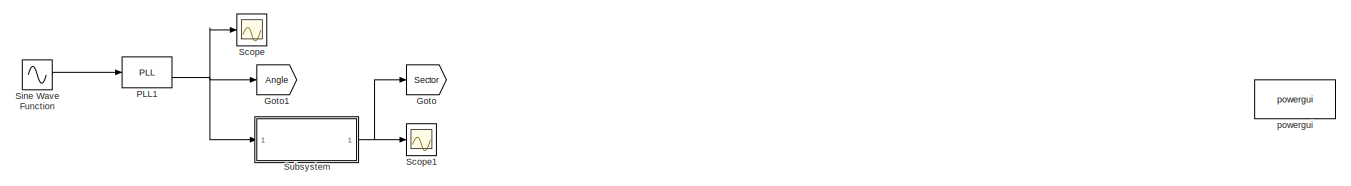
[diagram: root canvas - part 1/4, top center region]
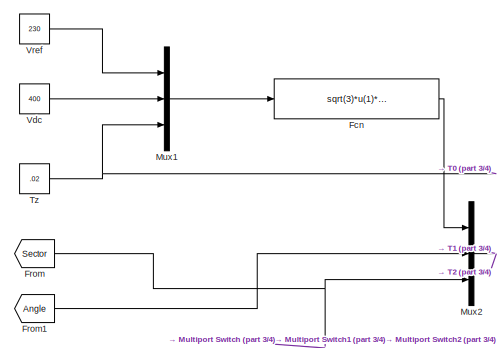
[diagram: root canvas - part 2/4, middle left region]
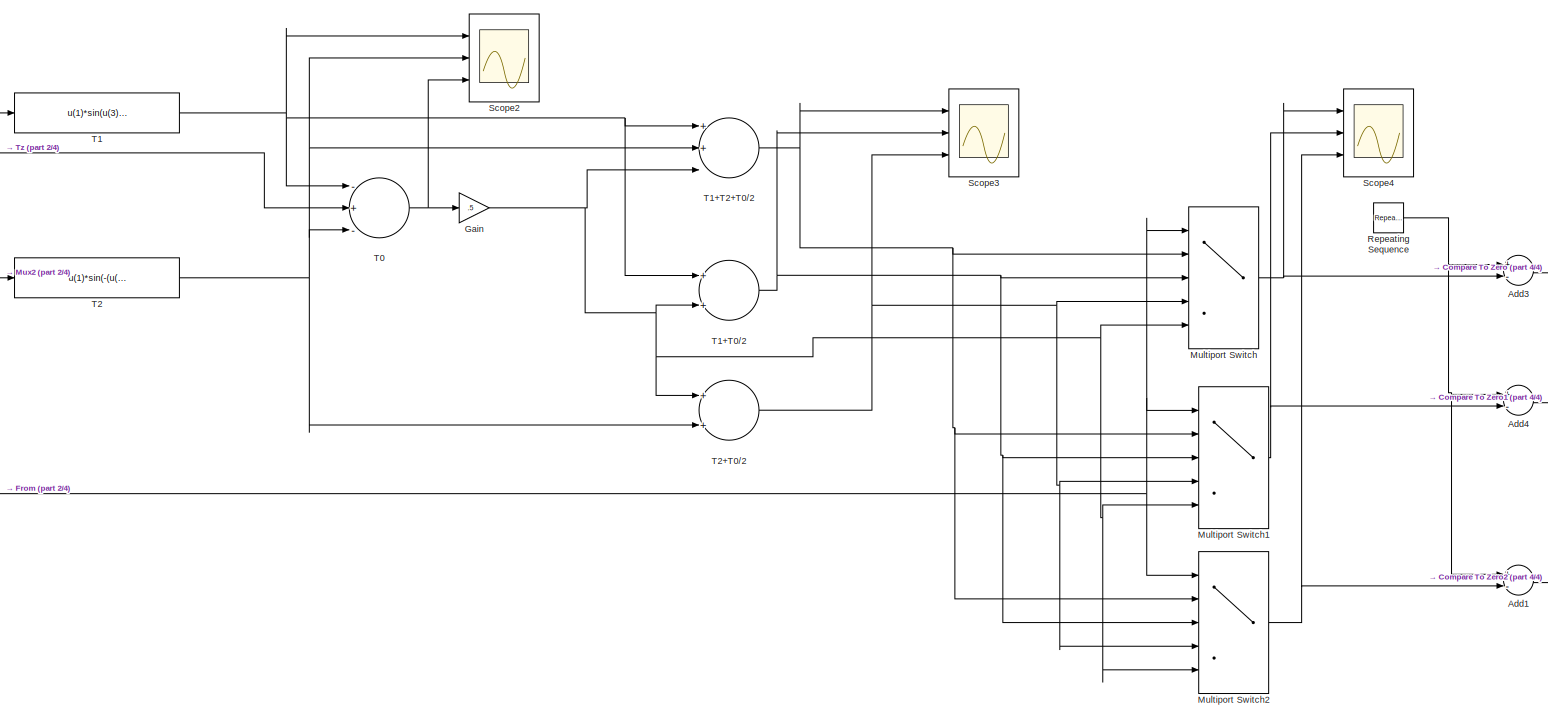
[diagram: root canvas - part 3/4, central region]
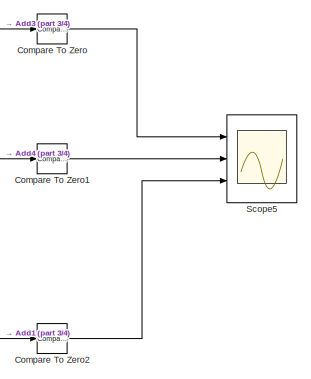
[diagram: root canvas - part 4/4, bottom right region]
MODEL slx_5c65df8fb041
KIND model
CONFIG AbsTol = auto
CONFIG EnableMultiTasking = off
CONFIG FixedStep = auto
CONFIG MaxStep = auto
CONFIG MinStep = auto
CONFIG RelTol = 1e-3
CONFIG SampleTimeConstraint = Unconstrained
CONFIG Solver = VariableStepAuto
CONFIG SolverName = VariableStepAuto
CONFIG StartTime = 0.0
CONFIG StopTime = 1.0
BLOCK [Sum] Add1
  InputSameDT = off
  Inputs = +-
  OutDataTypeStr = Inherit: Inherit via internal rule
  Ports = [2, 1]
  SaturateOnIntegerOverflow = off
BLOCK [Sum] Add3
  InputSameDT = off
  Inputs = +-
  OutDataTypeStr = Inherit: Inherit via internal rule
  Ports = [2, 1]
  SaturateOnIntegerOverflow = off
BLOCK [Sum] Add4
  InputSameDT = off
  Inputs = +-
  OutDataTypeStr = Inherit: Inherit via internal rule
  Ports = [2, 1]
  SaturateOnIntegerOverflow = off
BLOCK [Reference] Compare To Zero  REF=simulink/Logic and Bit
Operations/Compare
To Zero
  Ports = [1, 1]
  SourceBlock = simulink/Logic and Bit\nOperations/Compare\nTo Zero
  SourceProductBaseCode = SL
  SourceProductName = Simulink
  SourceType = Compare To Zero
BLOCK [Reference] Compare To Zero1  REF=simulink/Logic and Bit
Operations/Compare
To Zero
  Ports = [1, 1]
  SourceBlock = simulink/Logic and Bit\nOperations/Compare\nTo Zero
  SourceProductBaseCode = SL
  SourceProductName = Simulink
  SourceType = Compare To Zero
BLOCK [Reference] Compare To Zero2  REF=simulink/Logic and Bit
Operations/Compare
To Zero
  Ports = [1, 1]
  SourceBlock = simulink/Logic and Bit\nOperations/Compare\nTo Zero
  SourceProductBaseCode = SL
  SourceProductName = Simulink
  SourceType = Compare To Zero
BLOCK [Fcn] Fcn
  Expr = sqrt(3)*u(1)*u(3)/u(2)
BLOCK [From] From
  GotoTag = Sector
BLOCK [From] From1
  GotoTag = Angle
BLOCK [Gain] Gain
  Gain = .5
  OutDataTypeStr = Inherit: Inherit via internal rule
  ParamDataTypeStr = Inherit: Inherit via internal rule
  SaturateOnIntegerOverflow = off
BLOCK [Goto] Goto
  GotoTag = Sector
BLOCK [Goto] Goto1
  GotoTag = Angle
BLOCK [MultiPortSwitch] Multiport Switch
  DataPortIndices = {[1,6],2,5,[3,4]}
  DataPortOrder = Specify indices
  InputSameDT = off
  Inputs = 4
  Ports = [5, 1]
  SaturateOnIntegerOverflow = off
BLOCK [MultiPortSwitch] Multiport Switch1
  DataPortIndices = {[2,3],4,1,[5,6]}
  DataPortOrder = Specify indices
  InputSameDT = off
  Inputs = 4
  Ports = [5, 1]
  SaturateOnIntegerOverflow = off
BLOCK [MultiPortSwitch] Multiport Switch2
  DataPortIndices = {[4,5],6,3,[1,2]}
  DataPortOrder = Specify indices
  InputSameDT = off
  Inputs = 4
  Ports = [5, 1]
  SaturateOnIntegerOverflow = off
BLOCK [Mux] Mux1
  DisplayOption = bar
  Inputs = 3
  Ports = [3, 1]
BLOCK [Mux] Mux2
  DisplayOption = bar
  Inputs = 3
  Ports = [3, 1]
BLOCK [Reference] PLL1   REF=powerlib_meascontrol/PLL/PLL
  Ports = [1, 2]
  SourceBlock = powerlib_meascontrol/PLL/PLL
  SourceProductBaseCode = PS
  SourceProductName = Simscape Electrical
  SourceType = PLL
BLOCK [Reference] Repeating Sequence  REF=simulink/Sources/Repeating
Sequence
  Ports = [0, 1]
  SourceBlock = simulink/Sources/Repeating\nSequence
  SourceProductBaseCode = SL
  SourceProductName = Simulink
  SourceType = Repeating table
BLOCK [Scope] Scope
  Floating = off
  NumInputPorts = 1
  Ports = [1]
  ScopeSpecificationString = Simulink.scopes.TimeScopeBlockCfg('CurrentConfiguration', extmgr.ConfigurationSet(extmgr.Configuration('Core','General UI',true),extmgr.Configuration('Core','Source UI',true),extmgr.Configuration('Sources','WiredSimulink',true),extmgr.Configuration('Visuals','Time Domain',true,'SerializedDisplays',{struct('MinYLimReal','-0.7854','MaxYLimReal','7.06858','YLabelReal','','MinYLimMag','0.00000','MaxYL...<+1352ch>
BLOCK [Scope] Scope1
  Floating = off
  NumInputPorts = 1
  Ports = [1]
  ScopeSpecificationString = Simulink.scopes.TimeScopeBlockCfg('CurrentConfiguration', extmgr.ConfigurationSet(extmgr.Configuration('Core','General UI',true),extmgr.Configuration('Core','Source UI',true),extmgr.Configuration('Sources','WiredSimulink',true,'DataLoggingVariableName','ScopeData1'),extmgr.Configuration('Visuals','Time Domain',true,'SerializedDisplays',{struct('MinYLimReal','0.79056','MaxYLimReal','6.11565','YLabe...<+1414ch>
BLOCK [Scope] Scope2
  Floating = off
  NumInputPorts = 3
  Ports = [3]
  ScopeSpecificationString = Simulink.scopes.TimeScopeBlockCfg('CurrentConfiguration', extmgr.ConfigurationSet(extmgr.Configuration('Core','General UI',true),extmgr.Configuration('Core','Source UI',true),extmgr.Configuration('Sources','WiredSimulink',true,'DataLoggingVariableName','ScopeData2'),extmgr.Configuration('Visuals','Time Domain',true,'SerializedDisplays',{struct('MinYLimReal','-0.00151','MaxYLimReal','0.01784','YLab...<+2722ch>
BLOCK [Scope] Scope3
  Floating = off
  NumInputPorts = 3
  Ports = [3]
  ScopeSpecificationString = Simulink.scopes.TimeScopeBlockCfg('CurrentConfiguration', extmgr.ConfigurationSet(extmgr.Configuration('Core','General UI',true),extmgr.Configuration('Core','Source UI',true),extmgr.Configuration('Sources','WiredSimulink',true,'DataLoggingVariableName','ScopeData3'),extmgr.Configuration('Visuals','Time Domain',true,'SerializedDisplays',{struct('MinYLimReal','0.018624999999997','MaxYLimReal','0.018...<+2760ch>
BLOCK [Scope] Scope4
  Floating = off
  NumInputPorts = 3
  Ports = [3]
  ScopeSpecificationString = Simulink.scopes.TimeScopeBlockCfg('CurrentConfiguration', extmgr.ConfigurationSet(extmgr.Configuration('Core','General UI',true),extmgr.Configuration('Core','Source UI',true),extmgr.Configuration('Sources','WiredSimulink',true,'DataLoggingVariableName','ScopeData1'),extmgr.Configuration('Visuals','Time Domain',true,'SerializedDisplays',{struct('MinYLimReal','-0.00146','MaxYLimReal','0.0209','YLabe...<+2745ch>
BLOCK [Scope] Scope5
  Floating = off
  NumInputPorts = 3
  Ports = [3]
  ScopeSpecificationString = Simulink.scopes.TimeScopeBlockCfg('CurrentConfiguration', extmgr.ConfigurationSet(extmgr.Configuration('Core','General UI',true),extmgr.Configuration('Core','Source UI',true),extmgr.Configuration('Sources','WiredSimulink',true,'DataLoggingVariableName','ScopeData2'),extmgr.Configuration('Visuals','Time Domain',true,'SerializedDisplays',{struct('MinYLimReal','-0.125','MaxYLimReal','1.05742','YLabel...<+2734ch>
BLOCK [Sin] Sine Wave Function
  Frequency = 2*pi*50
  Ports = [0, 1]
  SampleTime = 0
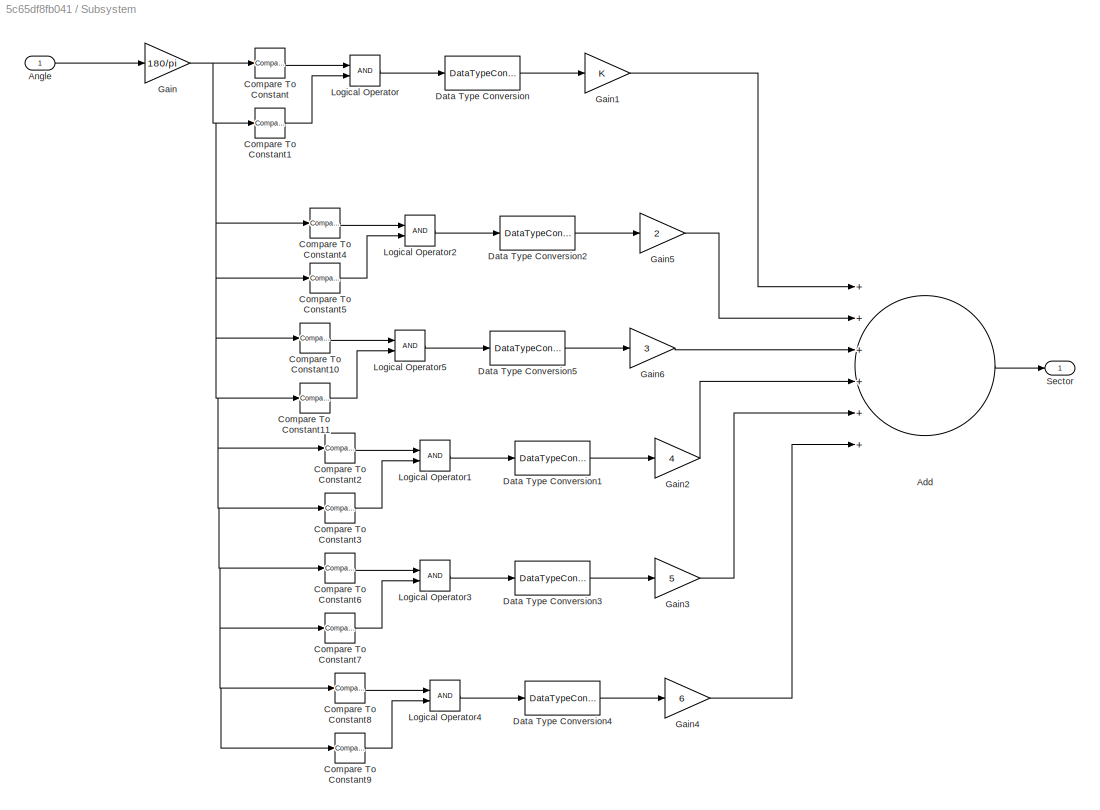
BLOCK [SubSystem] Subsystem
  Ports = [1, 1]
  RequestExecContextInheritance = off
BLOCK [Sum] Subsystem/Add
  InputSameDT = off
  Inputs = ++++++
  OutDataTypeStr = Inherit: Inherit via internal rule
  Ports = [6, 1]
  SaturateOnIntegerOverflow = off
BLOCK [Inport] Subsystem/Angle
  IconDisplay = Port number
BLOCK [Reference] Subsystem/Compare To Constant  REF=simulink/Logic and Bit
Operations/Compare
To Constant
  Ports = [1, 1]
  SourceBlock = simulink/Logic and Bit\nOperations/Compare\nTo Constant
  SourceProductBaseCode = SL
  SourceProductName = Simulink
  SourceType = Compare To Constant
BLOCK [Reference] Subsystem/Compare To Constant1  REF=simulink/Logic and Bit
Operations/Compare
To Constant
  Ports = [1, 1]
  SourceBlock = simulink/Logic and Bit\nOperations/Compare\nTo Constant
  SourceProductBaseCode = SL
  SourceProductName = Simulink
  SourceType = Compare To Constant
BLOCK [Reference] Subsystem/Compare To Constant10  REF=simulink/Logic and Bit
Operations/Compare
To Constant
  Ports = [1, 1]
  SourceBlock = simulink/Logic and Bit\nOperations/Compare\nTo Constant
  SourceProductBaseCode = SL
  SourceProductName = Simulink
  SourceType = Compare To Constant
BLOCK [Reference] Subsystem/Compare To Constant11  REF=simulink/Logic and Bit
Operations/Compare
To Constant
  Ports = [1, 1]
  SourceBlock = simulink/Logic and Bit\nOperations/Compare\nTo Constant
  SourceProductBaseCode = SL
  SourceProductName = Simulink
  SourceType = Compare To Constant
BLOCK [Reference] Subsystem/Compare To Constant2  REF=simulink/Logic and Bit
Operations/Compare
To Constant
  Ports = [1, 1]
  SourceBlock = simulink/Logic and Bit\nOperations/Compare\nTo Constant
  SourceProductBaseCode = SL
  SourceProductName = Simulink
  SourceType = Compare To Constant
BLOCK [Reference] Subsystem/Compare To Constant3  REF=simulink/Logic and Bit
Operations/Compare
To Constant
  Ports = [1, 1]
  SourceBlock = simulink/Logic and Bit\nOperations/Compare\nTo Constant
  SourceProductBaseCode = SL
  SourceProductName = Simulink
  SourceType = Compare To Constant
BLOCK [Reference] Subsystem/Compare To Constant4  REF=simulink/Logic and Bit
Operations/Compare
To Constant
  Ports = [1, 1]
  SourceBlock = simulink/Logic and Bit\nOperations/Compare\nTo Constant
  SourceProductBaseCode = SL
  SourceProductName = Simulink
  SourceType = Compare To Constant
BLOCK [Reference] Subsystem/Compare To Constant5  REF=simulink/Logic and Bit
Operations/Compare
To Constant
  Ports = [1, 1]
  SourceBlock = simulink/Logic and Bit\nOperations/Compare\nTo Constant
  SourceProductBaseCode = SL
  SourceProductName = Simulink
  SourceType = Compare To Constant
BLOCK [Reference] Subsystem/Compare To Constant6  REF=simulink/Logic and Bit
Operations/Compare
To Constant
  Ports = [1, 1]
  SourceBlock = simulink/Logic and Bit\nOperations/Compare\nTo Constant
  SourceProductBaseCode = SL
  SourceProductName = Simulink
  SourceType = Compare To Constant
BLOCK [Reference] Subsystem/Compare To Constant7  REF=simulink/Logic and Bit
Operations/Compare
To Constant
  Ports = [1, 1]
  SourceBlock = simulink/Logic and Bit\nOperations/Compare\nTo Constant
  SourceProductBaseCode = SL
  SourceProductName = Simulink
  SourceType = Compare To Constant
BLOCK [Reference] Subsystem/Compare To Constant8  REF=simulink/Logic and Bit
Operations/Compare
To Constant
  Ports = [1, 1]
  SourceBlock = simulink/Logic and Bit\nOperations/Compare\nTo Constant
  SourceProductBaseCode = SL
  SourceProductName = Simulink
  SourceType = Compare To Constant
BLOCK [Reference] Subsystem/Compare To Constant9  REF=simulink/Logic and Bit
Operations/Compare
To Constant
  Ports = [1, 1]
  SourceBlock = simulink/Logic and Bit\nOperations/Compare\nTo Constant
  SourceProductBaseCode = SL
  SourceProductName = Simulink
  SourceType = Compare To Constant
BLOCK [DataTypeConversion] Subsystem/Data Type Conversion
  RndMeth = Floor
  SaturateOnIntegerOverflow = off
BLOCK [DataTypeConversion] Subsystem/Data Type Conversion1
  RndMeth = Floor
  SaturateOnIntegerOverflow = off
BLOCK [DataTypeConversion] Subsystem/Data Type Conversion2
  RndMeth = Floor
  SaturateOnIntegerOverflow = off
BLOCK [DataTypeConversion] Subsystem/Data Type Conversion3
  RndMeth = Floor
  SaturateOnIntegerOverflow = off
BLOCK [DataTypeConversion] Subsystem/Data Type Conversion4
  RndMeth = Floor
  SaturateOnIntegerOverflow = off
BLOCK [DataTypeConversion] Subsystem/Data Type Conversion5
  RndMeth = Floor
  SaturateOnIntegerOverflow = off
BLOCK [Gain] Subsystem/Gain
  Gain = 180/pi
  OutDataTypeStr = Inherit: Inherit via internal rule
  ParamDataTypeStr = Inherit: Inherit via internal rule
  SaturateOnIntegerOverflow = off
BLOCK [Gain] Subsystem/Gain1
  OutDataTypeStr = Inherit: Inherit via internal rule
  ParamDataTypeStr = Inherit: Inherit via internal rule
  SaturateOnIntegerOverflow = off
BLOCK [Gain] Subsystem/Gain2
  Gain = 4
  OutDataTypeStr = Inherit: Inherit via internal rule
  ParamDataTypeStr = Inherit: Inherit via internal rule
  SaturateOnIntegerOverflow = off
BLOCK [Gain] Subsystem/Gain3
  Gain = 5
  OutDataTypeStr = Inherit: Inherit via internal rule
  ParamDataTypeStr = Inherit: Inherit via internal rule
  SaturateOnIntegerOverflow = off
BLOCK [Gain] Subsystem/Gain4
  Gain = 6
  OutDataTypeStr = Inherit: Inherit via internal rule
  ParamDataTypeStr = Inherit: Inherit via internal rule
  SaturateOnIntegerOverflow = off
BLOCK [Gain] Subsystem/Gain5
  Gain = 2
  OutDataTypeStr = Inherit: Inherit via internal rule
  ParamDataTypeStr = Inherit: Inherit via internal rule
  SaturateOnIntegerOverflow = off
BLOCK [Gain] Subsystem/Gain6
  Gain = 3
  OutDataTypeStr = Inherit: Inherit via internal rule
  ParamDataTypeStr = Inherit: Inherit via internal rule
  SaturateOnIntegerOverflow = off
BLOCK [Logic] Subsystem/Logical Operator
  AllPortsSameDT = off
  OutDataTypeStr = boolean
  Ports = [2, 1]
BLOCK [Logic] Subsystem/Logical Operator1
  AllPortsSameDT = off
  OutDataTypeStr = boolean
  Ports = [2, 1]
BLOCK [Logic] Subsystem/Logical Operator2
  AllPortsSameDT = off
  OutDataTypeStr = boolean
  Ports = [2, 1]
BLOCK [Logic] Subsystem/Logical Operator3
  AllPortsSameDT = off
  OutDataTypeStr = boolean
  Ports = [2, 1]
BLOCK [Logic] Subsystem/Logical Operator4
  AllPortsSameDT = off
  OutDataTypeStr = boolean
  Ports = [2, 1]
BLOCK [Logic] Subsystem/Logical Operator5
  AllPortsSameDT = off
  OutDataTypeStr = boolean
  Ports = [2, 1]
BLOCK [Outport] Subsystem/Sector
  IconDisplay = Port number
BLOCK [Sum] T0
  InputSameDT = off
  Inputs = -+-
  OutDataTypeStr = Inherit: Inherit via internal rule
  Ports = [3, 1]
  SaturateOnIntegerOverflow = off
BLOCK [Fcn] T1
  Expr = u(1)*sin(u(3)*pi/3-u(2))
BLOCK [Sum] T1+T0//2
  InputSameDT = off
  Inputs = 2
  OutDataTypeStr = Inherit: Inherit via internal rule
  Ports = [2, 1]
  SaturateOnIntegerOverflow = off
BLOCK [Sum] T1+T2+T0//2
  InputSameDT = off
  Inputs = 3
  OutDataTypeStr = Inherit: Inherit via internal rule
  Ports = [3, 1]
  SaturateOnIntegerOverflow = off
BLOCK [Fcn] T2
  Expr = u(1)*sin(-(u(3)-1)*pi/3+u(2))
BLOCK [Sum] T2+T0//2
  InputSameDT = off
  Inputs = 2
  OutDataTypeStr = Inherit: Inherit via internal rule
  Ports = [2, 1]
  SaturateOnIntegerOverflow = off
BLOCK [Constant] Tz
  Value = .02
BLOCK [Constant] Vdc
  Value = 400
BLOCK [Constant] Vref
  Value = 230
BLOCK [Reference] powergui  REF=powerlib/powergui
  Ports = []
  Priority = 1
  SourceBlock = powerlib/powergui
  SourceProductBaseCode = PS
  SourceProductName = Simscape Electrical
  SourceType = PSB option menu block
LINE Add1:1 -> Compare To Zero2:1
LINE Add3:1 -> Compare To Zero:1
LINE Add4:1 -> Compare To Zero1:1
LINE Compare To Zero1:1 -> Scope5:2
LINE Compare To Zero2:1 -> Scope5:3
LINE Compare To Zero:1 -> Scope5:1
LINE Fcn:1 -> Mux2:1
LINE From1:1 -> Mux2:2
NET From:1 -> Multiport Switch1:1, Multiport Switch2:1, Multiport Switch:1, Mux2:3
NET Gain:1 -> Multiport Switch1:5, Multiport Switch2:5, Multiport Switch:5, T1+T0//2:2, T1+T2+T0//2:3, T2+T0//2:1
NET Multiport Switch1:1 -> Add4:2, Scope4:2
NET Multiport Switch2:1 -> Add1:2, Scope4:3
NET Multiport Switch:1 -> Add3:2, Scope4:1
LINE Mux1:1 -> Fcn:1
NET Mux2:1 -> T1:1, T2:1
NET PLL1 :2 -> Goto1:1, Scope:1, Subsystem:1
NET Repeating Sequence:1 -> Add1:1, Add3:1, Add4:1
LINE Sine Wave Function:1 -> PLL1 :1
LINE Subsystem/Add:1 -> Subsystem/Sector:1
LINE Subsystem/Angle:1 -> Subsystem/Gain:1
LINE Subsystem/Compare To Constant10:1 -> Subsystem/Logical Operator5:1
LINE Subsystem/Compare To Constant11:1 -> Subsystem/Logical Operator5:2
LINE Subsystem/Compare To Constant1:1 -> Subsystem/Logical Operator:2
LINE Subsystem/Compare To Constant2:1 -> Subsystem/Logical Operator1:1
LINE Subsystem/Compare To Constant3:1 -> Subsystem/Logical Operator1:2
LINE Subsystem/Compare To Constant4:1 -> Subsystem/Logical Operator2:1
LINE Subsystem/Compare To Constant5:1 -> Subsystem/Logical Operator2:2
LINE Subsystem/Compare To Constant6:1 -> Subsystem/Logical Operator3:1
LINE Subsystem/Compare To Constant7:1 -> Subsystem/Logical Operator3:2
LINE Subsystem/Compare To Constant8:1 -> Subsystem/Logical Operator4:1
LINE Subsystem/Compare To Constant9:1 -> Subsystem/Logical Operator4:2
LINE Subsystem/Compare To Constant:1 -> Subsystem/Logical Operator:1
LINE Subsystem/Data Type Conversion1:1 -> Subsystem/Gain2:1
LINE Subsystem/Data Type Conversion2:1 -> Subsystem/Gain5:1
LINE Subsystem/Data Type Conversion3:1 -> Subsystem/Gain3:1
LINE Subsystem/Data Type Conversion4:1 -> Subsystem/Gain4:1
LINE Subsystem/Data Type Conversion5:1 -> Subsystem/Gain6:1
LINE Subsystem/Data Type Conversion:1 -> Subsystem/Gain1:1
LINE Subsystem/Gain1:1 -> Subsystem/Add:1
LINE Subsystem/Gain2:1 -> Subsystem/Add:4
LINE Subsystem/Gain3:1 -> Subsystem/Add:5
LINE Subsystem/Gain4:1 -> Subsystem/Add:6
LINE Subsystem/Gain5:1 -> Subsystem/Add:2
LINE Subsystem/Gain6:1 -> Subsystem/Add:3
NET Subsystem/Gain:1 -> Subsystem/Compare To Constant10:1, Subsystem/Compare To Constant11:1, Subsystem/Compare To Constant1:1, Subsystem/Compare To Constant2:1, Subsystem/Compare To Constant3:1, Subsystem/Compare To Constant4:1, Subsystem/Compare To Constant5:1, Subsystem/Compare To Constant6:1, Subsystem/Compare To Constant7:1, Subsystem/Compare To Constant8:1, Subsystem/Compare To Constant9:1, Subsystem/Compare To Constant:1
LINE Subsystem/Logical Operator1:1 -> Subsystem/Data Type Conversion1:1
LINE Subsystem/Logical Operator2:1 -> Subsystem/Data Type Conversion2:1
LINE Subsystem/Logical Operator3:1 -> Subsystem/Data Type Conversion3:1
LINE Subsystem/Logical Operator4:1 -> Subsystem/Data Type Conversion4:1
LINE Subsystem/Logical Operator5:1 -> Subsystem/Data Type Conversion5:1
LINE Subsystem/Logical Operator:1 -> Subsystem/Data Type Conversion:1
NET Subsystem:1 -> Goto:1, Scope1:1
NET T0:1 -> Gain:1, Scope2:3
NET T1+T0//2:1 -> Multiport Switch1:3, Multiport Switch2:3, Multiport Switch:3, Scope3:2
NET T1+T2+T0//2:1 -> Multiport Switch1:2, Multiport Switch2:2, Multiport Switch:2, Scope3:1
NET T1:1 -> Scope2:1, T0:1, T1+T0//2:1, T1+T2+T0//2:1
NET T2+T0//2:1 -> Multiport Switch1:4, Multiport Switch2:4, Multiport Switch:4, Scope3:3
NET T2:1 -> Scope2:2, T0:3, T1+T2+T0//2:2, T2+T0//2:2
NET Tz:1 -> Mux1:3, T0:2
LINE Vdc:1 -> Mux1:2
LINE Vref:1 -> Mux1:1
note: NET lines group one-source signal fan-out (src -> all destinations, sorted); 1:1 wires keep LINE
